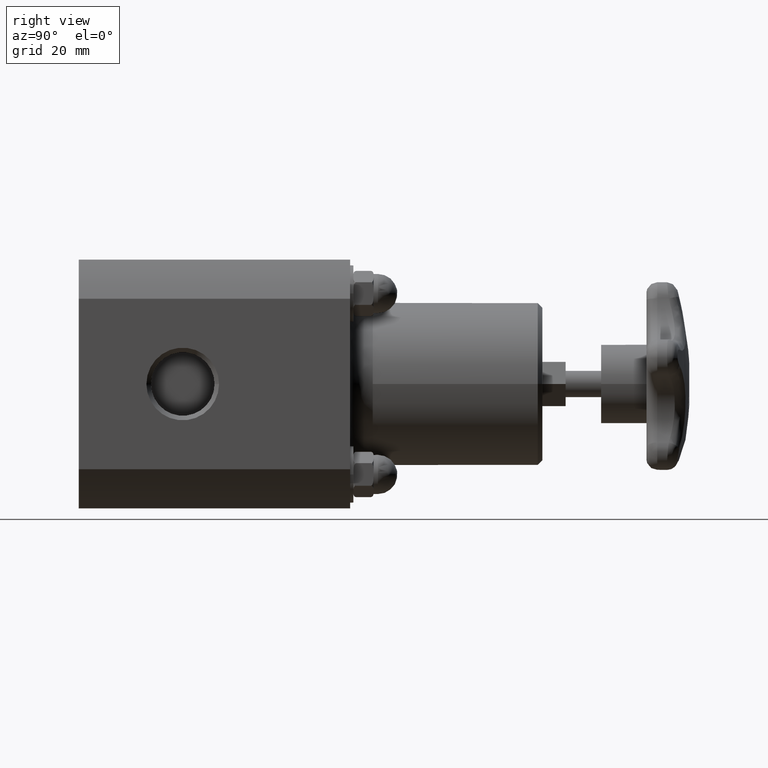
[diagram: clean part render]
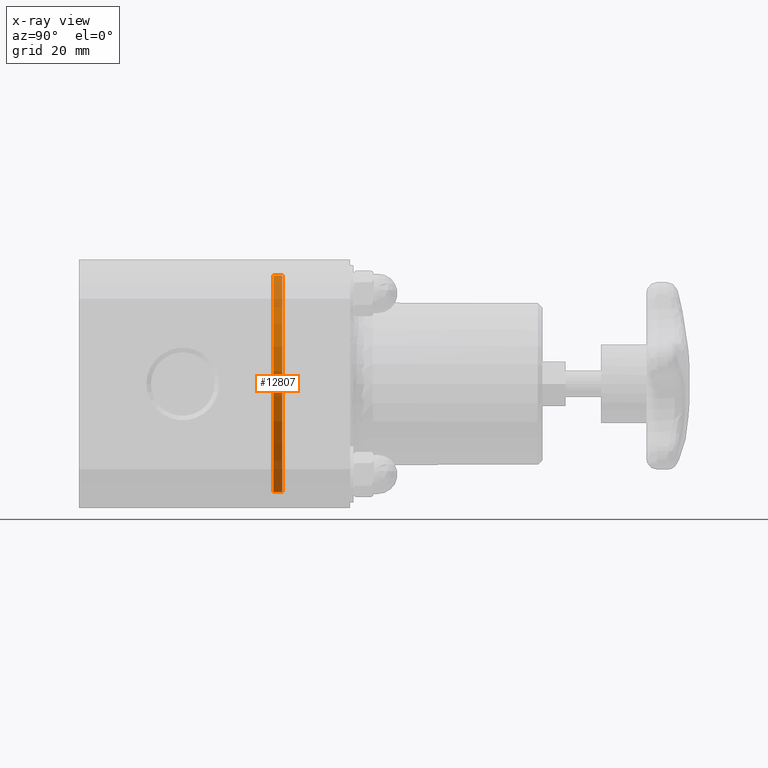
[diagram: x-ray — body ghosted, one internal face saturated and labeled with its STEP entity id]
A machine part, right view, then the same camera in x-ray: the body is ghosted and one INTERNAL B-rep face — a face not visible from any outside direction — is saturated and labeled: STEP entity #12807.
In plain terms, the highlighted cylindrical surface (bore or boss wall) has radius 30.48 mm, axis along (-0, 1, 0).
Its self-contained STEP definition (entity closure, byte-faithful):
#12780=CARTESIAN_POINT('',(-1.099121E-015,2.200000000000000,6.308368E-016));
#12781=DIRECTION('',(-4.996004E-016,1.0,2.867440E-016));
#12782=DIRECTION('',(-1.0,0.0,0.0));
#12783=AXIS2_PLACEMENT_3D('',#12780,#12781,#12782);
#12784=CYLINDRICAL_SURFACE('',#12783,1.200000000000000);
#12785=CARTESIAN_POINT('',(-1.200000000000001,2.250000000000000,5.486538E-016));
#12786=VERTEX_POINT('',#12785);
#12787=CARTESIAN_POINT('',(-1.124101E-015,2.250000000000000,6.451740E-016));
#12788=DIRECTION('',(0.0,-1.0,0.0));
#12789=DIRECTION('',(-1.0,0.0,0.0));
#12790=AXIS2_PLACEMENT_3D('',#12787,#12788,#12789);
#12791=CIRCLE('',#12790,1.200000000000000);
#12792=EDGE_CURVE('',#12786,#12786,#12791,.T.);
#12793=ORIENTED_EDGE('',*,*,#12792,.F.);
#12794=EDGE_LOOP('',(#12793));
#12795=FACE_OUTER_BOUND('',#12794,.T.);
#12796=CARTESIAN_POINT('',(-1.200000000000001,2.150000000000000,5.199794E-016));
#12797=VERTEX_POINT('',#12796);
#12798=CARTESIAN_POINT('',(-1.074141E-015,2.150000000000000,6.164996E-016));
#12799=DIRECTION('',(0.0,1.0,0.0));
#12800=DIRECTION('',(-1.0,0.0,0.0));
#12801=AXIS2_PLACEMENT_3D('',#12798,#12799,#12800);
#12802=CIRCLE('',#12801,1.200000000000000);
#12803=EDGE_CURVE('',#12797,#12797,#12802,.T.);
#12804=ORIENTED_EDGE('',*,*,#12803,.F.);
#12805=EDGE_LOOP('',(#12804));
#12806=FACE_BOUND('',#12805,.T.);
#12807=ADVANCED_FACE('',(#12795,#12806),#12784,.F.);